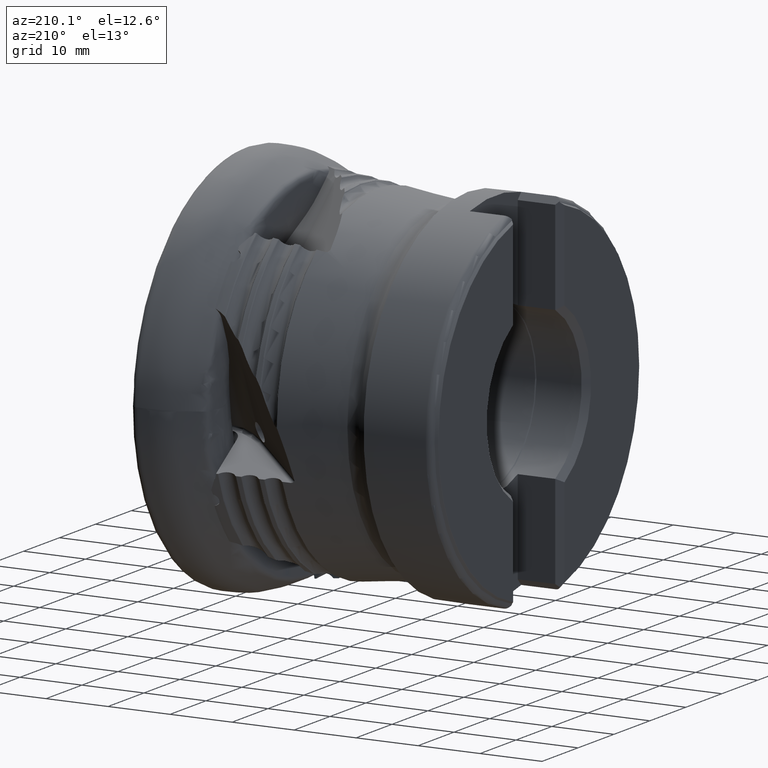
[diagram: clean part render]
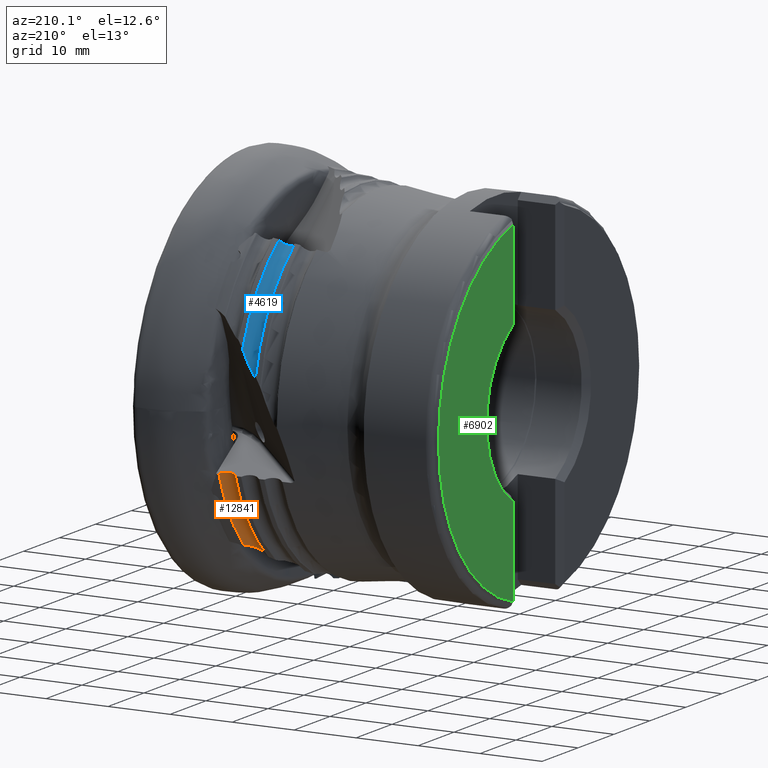
[diagram: same view with three faces highlighted in distinct colors, each labeled with its STEP entity id]
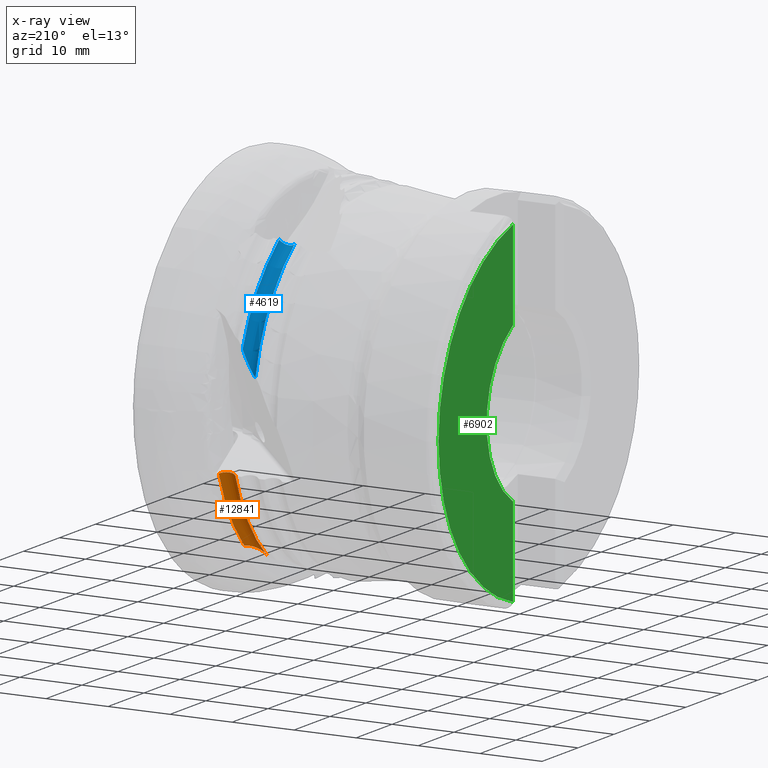
[diagram: x-ray of the same camera — body ghosted, the three highlighted faces saturated]
A machine part, auxiliary view with three faces highlighted in distinct colors.
The next image is the same camera in x-ray (body ghosted, the three faces saturated) — at least one of them is partly hidden behind the body in this view.
Their STEP definitions:

[orange] entity #12841 — the highlighted toroidal blend (fillet) surface has major radius 29.5836 mm and minor (blend) radius 1.5 mm.
#267 = DIRECTION ( 'NONE',  ( 1.000000000000000000, -0.0000000000000000000, -0.0000000000000000000 ) ) ;
#283 = CARTESIAN_POINT ( 'NONE',  ( -14.66368016556454600, 26.74815142583610200, -8.546479649731228500 ) ) ;
#577 = EDGE_LOOP ( 'NONE', ( #12160, #3145, #5440, #6804, #5904 ) ) ;
#698 = CARTESIAN_POINT ( 'NONE',  ( -15.64431457968922200, 18.25441115952500200, -21.89484082887267700 ) ) ;
#823 = CARTESIAN_POINT ( 'NONE',  ( -13.59798341822701100, 19.77894281667235500, -20.45328224450758700 ) ) ;
#1031 = EDGE_CURVE ( 'NONE', #3754, #9838, #13002, .T. ) ;
#1328 = CARTESIAN_POINT ( 'NONE',  ( -14.29861882600508400, 26.78175748694466000, -8.530557639437185800 ) ) ;
#1537 = DIRECTION ( 'NONE',  ( 1.000000000000000000, -0.0000000000000000000, -0.0000000000000000000 ) ) ;
#1862 = CARTESIAN_POINT ( 'NONE',  ( -13.93645120841135200, 19.28018875878806800, -20.61816210312195000 ) ) ;
#1990 = DIRECTION ( 'NONE',  ( -1.000000000000000000, 0.0000000000000000000, 0.0000000000000000000 ) ) ;
#2260 = CARTESIAN_POINT ( 'NONE',  ( -15.73091924072487700, 27.22649136495527200, -8.780370898644724400 ) ) ;
#2376 = DIRECTION ( 'NONE',  ( 0.0000000000000000000, 0.0000000000000000000, -1.000000000000000000 ) ) ;
#2395 = CARTESIAN_POINT ( 'NONE',  ( -13.95120504300901100, 26.89800882484249200, -8.542786251049474100 ) ) ;
#2709 = B_SPLINE_CURVE_WITH_KNOTS ( 'NONE', 3,
 ( #2260, #10858, #4426, #12046, #5507, #13114, #6592, #283, #7690, #1328, #8788, #2395, #9871, #3416, #10993, #4481 ),
 .UNSPECIFIED., .F., .F.,
 ( 4, 2, 2, 2, 2, 2, 2, 4 ),
 ( 3.032796259778654100E-007, 0.0003657010842361657500, 0.0007310988888463536300, 0.001096496693456541300, 0.001461894498066729400, 0.001827292302676917300, 0.002192690107287104700, 0.002923485716507481400 ),
 .UNSPECIFIED. ) ;
#2860 = CARTESIAN_POINT ( 'NONE',  ( -13.32671211212902100, 20.32676883207047400, -20.35382121929849200 ) ) ;
#2905 = CARTESIAN_POINT ( 'NONE',  ( -14.31613983948799900, 18.84691777508125200, -20.84728676107276300 ) ) ;
#3066 = AXIS2_PLACEMENT_3D ( 'NONE', #8772, #267, #2376 ) ;
#3145 = ORIENTED_EDGE ( 'NONE', *, *, #10970, .T. ) ;
#3296 = AXIS2_PLACEMENT_3D ( 'NONE', #7906, #1537, #9003 ) ;
#3399 = CARTESIAN_POINT ( 'NONE',  ( -13.25971844914862500, 27.55239962152452900, -8.704568880673177100 ) ) ;
#3416 = CARTESIAN_POINT ( 'NONE',  ( -13.53998262627695600, 27.15886044041274500, -8.597306785561542600 ) ) ;
#3754 = VERTEX_POINT ( 'NONE', #3399 ) ;
#3785 = CARTESIAN_POINT ( 'NONE',  ( -14.67487224676652100, 18.52419754906706500, -21.10786906102066500 ) ) ;
#3955 = CARTESIAN_POINT ( 'NONE',  ( -14.58857736291004800, 18.59805745769143200, -21.04286551054451200 ) ) ;
#4010 = FACE_OUTER_BOUND ( 'NONE', #577, .T. ) ;
#4056 = EDGE_CURVE ( 'NONE', #9838, #12118, #10907, .T. ) ;
#4426 = CARTESIAN_POINT ( 'NONE',  ( -15.56055790327976300, 27.06308975943152700, -8.714752612925950700 ) ) ;
#4481 = CARTESIAN_POINT ( 'NONE',  ( -13.25971844914862500, 27.55239962152452900, -8.704568880673177100 ) ) ;
#4848 = CARTESIAN_POINT ( 'NONE',  ( -14.94941276981207200, 18.34153211416847600, -21.31997167976398800 ) ) ;
#4943 = EDGE_CURVE ( 'NONE', #12118, #7723, #7149, .T. ) ;
#5440 = ORIENTED_EDGE ( 'NONE', *, *, #1031, .T. ) ;
#5507 = CARTESIAN_POINT ( 'NONE',  ( -15.25233690603162300, 26.87909898335922400, -8.632308313367781600 ) ) ;
#5564 = CIRCLE ( 'NONE', #3296, 28.60728482683651900 ) ;
#5904 = ORIENTED_EDGE ( 'NONE', *, *, #4943, .T. ) ;
#5931 = CARTESIAN_POINT ( 'NONE',  ( -15.24425908267375200, 18.22635377610626500, -21.55596613762418900 ) ) ;
#5956 = CARTESIAN_POINT ( 'NONE',  ( -14.58857736291004800, 18.59805745769143200, -21.04286551054451200 ) ) ;
#6001 = CARTESIAN_POINT ( 'NONE',  ( -15.73091924072486200, 18.31726440946174600, -21.97395207325292100 ) ) ;
#6401 = EDGE_CURVE ( 'NONE', #7723, #8871, #5564, .T. ) ;
#6592 = CARTESIAN_POINT ( 'NONE',  ( -14.90615834749977400, 26.77286863747204400, -8.572339064241591100 ) ) ;
#6804 = ORIENTED_EDGE ( 'NONE', *, *, #4056, .T. ) ;
#7029 = CARTESIAN_POINT ( 'NONE',  ( -15.54537783855138900, 18.22202470549650100, -21.80845700398719000 ) ) ;
#7149 = B_SPLINE_CURVE_WITH_KNOTS ( 'NONE', 3,
 ( #9183, #3785, #11372, #4848, #12472, #5931, #13548, #7029, #698, #8127 ),
 .UNSPECIFIED., .F., .F.,
 ( 4, 2, 2, 2, 4 ),
 ( 0.0001907705115792472200, 0.0005824372260205341000, 0.0009741039404618209800, 0.001365770654903108000, 0.001757437369344394600 ),
 .UNSPECIFIED. ) ;
#7690 = CARTESIAN_POINT ( 'NONE',  ( -14.54217313492521800, 26.74988325165344300, -8.538108500870922800 ) ) ;
#7723 = VERTEX_POINT ( 'NONE', #6001 ) ;
#7906 = CARTESIAN_POINT ( 'NONE',  ( -15.73091924072488400, 0.0000000000000000000, 0.0000000000000000000 ) ) ;
#8003 = CARTESIAN_POINT ( 'NONE',  ( -13.25971844914865000, 20.52456332381569100, -20.33830240382039600 ) ) ;
#8127 = CARTESIAN_POINT ( 'NONE',  ( -15.73091924072486200, 18.31726440946174600, -21.97395207325292100 ) ) ;
#8251 = CARTESIAN_POINT ( 'NONE',  ( -13.70516208307503300, 19.60600345781503900, -20.50091011351171500 ) ) ;
#8386 = CARTESIAN_POINT ( 'NONE',  ( -13.25971844914842600, 0.0000000000000000000, 0.0000000000000000000 ) ) ;
#8728 = TOROIDAL_SURFACE ( 'NONE', #3066, 29.58361959679392000, 1.500000000000002400 ) ;
#8772 = CARTESIAN_POINT ( 'NONE',  ( -14.59216096217220500, 0.0000000000000000000, 0.0000000000000000000 ) ) ;
#8788 = CARTESIAN_POINT ( 'NONE',  ( -14.17897787077064300, 26.81187978294629200, -8.531548317467915900 ) ) ;
#8871 = VERTEX_POINT ( 'NONE', #9373 ) ;
#9003 = DIRECTION ( 'NONE',  ( 0.0000000000000000000, 0.0000000000000000000, -1.000000000000000000 ) ) ;
#9183 = CARTESIAN_POINT ( 'NONE',  ( -14.58857736291004800, 18.59805745769143200, -21.04286551054451200 ) ) ;
#9343 = CARTESIAN_POINT ( 'NONE',  ( -14.05929468738462900, 19.12873399521459900, -20.68706232287737000 ) ) ;
#9373 = CARTESIAN_POINT ( 'NONE',  ( -15.73091924072487700, 27.22649136495527200, -8.780370898644724400 ) ) ;
#9479 = DIRECTION ( 'NONE',  ( 0.0000000000000000000, 0.0000000000000000000, 1.000000000000000000 ) ) ;
#9838 = VERTEX_POINT ( 'NONE', #8003 ) ;
#9871 = CARTESIAN_POINT ( 'NONE',  ( -13.84078516411995500, 26.95518636618206900, -8.553245694514894000 ) ) ;
#10435 = CARTESIAN_POINT ( 'NONE',  ( -14.45096424268653300, 18.71584071471656000, -20.93920535125270300 ) ) ;
#10858 = CARTESIAN_POINT ( 'NONE',  ( -15.65058963378116600, 27.13910762456153900, -8.746071933679914400 ) ) ;
#10907 = B_SPLINE_CURVE_WITH_KNOTS ( 'NONE', 3,
 ( #11447, #2860, #13674, #823, #8251, #1862, #9343, #2905, #10435, #3955 ),
 .UNSPECIFIED., .F., .F.,
 ( 4, 2, 2, 2, 4 ),
 ( 6.164340467705263700E-007, 0.0006199291021021860500, 0.001239241770157601400, 0.001858554438213016800, 0.002477867106268432300 ),
 .UNSPECIFIED. ) ;
#10970 = EDGE_CURVE ( 'NONE', #8871, #3754, #2709, .T. ) ;
#10993 = CARTESIAN_POINT ( 'NONE',  ( -13.37317353910212400, 27.34130555527529100, -8.644322091800191300 ) ) ;
#11372 = CARTESIAN_POINT ( 'NONE',  ( -14.76391762027453300, 18.45717426750530500, -21.17587540053323600 ) ) ;
#11447 = CARTESIAN_POINT ( 'NONE',  ( -13.25971844914865000, 20.52456332381569100, -20.33830240382039600 ) ) ;
#11632 = AXIS2_PLACEMENT_3D ( 'NONE', #8386, #1990, #9479 ) ;
#12046 = CARTESIAN_POINT ( 'NONE',  ( -15.36178085584722400, 26.93297668227241100, -8.657861149253674800 ) ) ;
#12118 = VERTEX_POINT ( 'NONE', #5956 ) ;
#12160 = ORIENTED_EDGE ( 'NONE', *, *, #6401, .T. ) ;
#12472 = CARTESIAN_POINT ( 'NONE',  ( -15.04650493972103600, 18.29268377587328900, -21.39657796579303900 ) ) ;
#12841 = ADVANCED_FACE ( 'NONE', ( #4010 ), #8728, .F. ) ;
#13002 = CIRCLE ( 'NONE', #11632, 28.89470962481823000 ) ;
#13114 = CARTESIAN_POINT ( 'NONE',  ( -15.02596670741099800, 26.79962039662904500, -8.589840195432559600 ) ) ;
#13548 = CARTESIAN_POINT ( 'NONE',  ( -15.34675650233438100, 18.20857372419403900, -21.64025951160877200 ) ) ;
#13674 = CARTESIAN_POINT ( 'NONE',  ( -13.40919753706904400, 20.13881497972345300, -20.37995926701862000 ) ) ;

[blue] entity #4619 — the highlighted toroidal blend (fillet) surface has major radius 29.1793 mm and minor (blend) radius 1.5 mm.
#199 = DIRECTION ( 'NONE',  ( 0.0000000000000000000, 0.0000000000000000000, -1.000000000000000000 ) ) ;
#201 = CARTESIAN_POINT ( 'NONE',  ( -17.77487234381225900, 16.34828886853912200, 22.36520211828384700 ) ) ;
#422 = ORIENTED_EDGE ( 'NONE', *, *, #10451, .T. ) ;
#442 = CIRCLE ( 'NONE', #1380, 28.49035131074739300 ) ;
#838 = CARTESIAN_POINT ( 'NONE',  ( -16.73628203318752800, 26.91251832291045100, 9.349677819576856000 ) ) ;
#884 = CARTESIAN_POINT ( 'NONE',  ( -18.83777621484479400, 27.27512742671571300, 5.817726045446863600 ) ) ;
#1187 = CARTESIAN_POINT ( 'NONE',  ( -19.20748282476013800, 0.0000000000000000000, 0.0000000000000000000 ) ) ;
#1263 = CARTESIAN_POINT ( 'NONE',  ( -17.42754815643262100, 16.39599631789283400, 22.47218576609484600 ) ) ;
#1341 = FACE_OUTER_BOUND ( 'NONE', #13824, .T. ) ;
#1380 = AXIS2_PLACEMENT_3D ( 'NONE', #4577, #12207, #5670 ) ;
#1931 = CARTESIAN_POINT ( 'NONE',  ( -19.06801515487307000, 27.45915504567869200, 5.758191708074990700 ) ) ;
#2198 = VERTEX_POINT ( 'NONE', #4414 ) ;
#2240 = DIRECTION ( 'NONE',  ( 0.0000000000000000000, 0.0000000000000000000, -1.000000000000000000 ) ) ;
#2270 = CARTESIAN_POINT ( 'NONE',  ( -19.20748282476038000, 16.72277955462657300, 22.71021153252045000 ) ) ;
#2308 = CARTESIAN_POINT ( 'NONE',  ( -17.01647133725787200, 16.52859563097484500, 22.70359747406820400 ) ) ;
#2917 = CARTESIAN_POINT ( 'NONE',  ( -16.96992041065848500, 26.79510340166409700, 8.599110053481418000 ) ) ;
#2961 = CARTESIAN_POINT ( 'NONE',  ( -19.20748282476043300, 27.60165929998117600, 5.792535521878797900 ) ) ;
#3306 = CARTESIAN_POINT ( 'NONE',  ( -18.06872454620770800, 0.0000000000000000000, 0.0000000000000000000 ) ) ;
#3308 = CARTESIAN_POINT ( 'NONE',  ( -19.03706399373120200, 16.60990339114075500, 22.57512497044495700 ) ) ;
#3354 = CARTESIAN_POINT ( 'NONE',  ( -16.73628203318413200, 16.75226101861765600, 23.04477963821555500 ) ) ;
#3489 = CARTESIAN_POINT ( 'NONE',  ( -16.73628203318413200, 16.75226101861765600, 23.04477963821555500 ) ) ;
#3522 = ORIENTED_EDGE ( 'NONE', *, *, #10520, .T. ) ;
#3580 = CARTESIAN_POINT ( 'NONE',  ( -19.20748282476043300, 27.60165929998117600, 5.792535521878797900 ) ) ;
#3972 = CARTESIAN_POINT ( 'NONE',  ( -17.45611975891431600, 26.76119937759158100, 7.514674314835135100 ) ) ;
#4315 = DIRECTION ( 'NONE',  ( 1.000000000000000000, -0.0000000000000000000, -0.0000000000000000000 ) ) ;
#4359 = CARTESIAN_POINT ( 'NONE',  ( -18.72873053462962300, 16.47472063442490500, 22.42574325088558900 ) ) ;
#4414 = CARTESIAN_POINT ( 'NONE',  ( -16.73628203318752800, 26.91251832291045100, 9.349677819576856000 ) ) ;
#4530 = AXIS2_PLACEMENT_3D ( 'NONE', #1187, #8641, #2240 ) ;
#4577 = CARTESIAN_POINT ( 'NONE',  ( -16.73628203318394700, 0.0000000000000000000, 0.0000000000000000000 ) ) ;
#4619 = ADVANCED_FACE ( 'NONE', ( #1341 ), #12447, .F. ) ;
#5043 = CARTESIAN_POINT ( 'NONE',  ( -17.86445195771179000, 26.83327668133958400, 6.832072677901973800 ) ) ;
#5422 = CARTESIAN_POINT ( 'NONE',  ( -18.38244554364728200, 16.38499237104885600, 22.34343923880802100 ) ) ;
#5670 = DIRECTION ( 'NONE',  ( 0.0000000000000000000, 0.0000000000000000000, 1.000000000000000000 ) ) ;
#5744 = B_SPLINE_CURVE_WITH_KNOTS ( 'NONE', 3,
 ( #2270, #8668, #3308, #10867, #4359, #11975, #5422, #13043, #6524, #201, #7614, #1263, #8715, #2308, #9804, #3354 ),
 .UNSPECIFIED., .F., .F.,
 ( 4, 2, 2, 2, 2, 2, 2, 4 ),
 ( 3.031922946971121000E-007, 0.0003657123309134226700, 0.0007311214695321482400, 0.001096530608150873900, 0.001461939746769599500, 0.001827348885388325100, 0.002192758024007050600, 0.002923576301244512200 ),
 .UNSPECIFIED. ) ;
#6008 = B_SPLINE_CURVE_WITH_KNOTS ( 'NONE', 3,
 ( #838, #6071, #2917, #10454, #3972, #11560, #5043, #12656, #6114, #13739, #7222, #884, #8312, #1931, #9410, #2961 ),
 .UNSPECIFIED., .F., .F.,
 ( 4, 2, 2, 2, 2, 2, 2, 4 ),
 ( 7.800189704854811000E-007, 0.001185173469790919600, 0.002369566920611353700, 0.002961763646021570900, 0.003553960371431788200, 0.004146157096842005000, 0.004442255459547120000, 0.004738353822252234900 ),
 .UNSPECIFIED. ) ;
#6055 = VERTEX_POINT ( 'NONE', #6350 ) ;
#6071 = CARTESIAN_POINT ( 'NONE',  ( -16.83753142971311000, 26.83735116372996600, 8.969309841691869100 ) ) ;
#6114 = CARTESIAN_POINT ( 'NONE',  ( -18.21071572689565000, 26.94052053772089600, 6.357884448387783200 ) ) ;
#6350 = CARTESIAN_POINT ( 'NONE',  ( -19.20748282476038000, 16.72277955462657300, 22.71021153252045000 ) ) ;
#6524 = CARTESIAN_POINT ( 'NONE',  ( -18.01843705367538100, 16.34550377099342500, 22.33239269539868500 ) ) ;
#7222 = CARTESIAN_POINT ( 'NONE',  ( -18.61260587758133800, 27.12688691031657100, 5.947960019773759700 ) ) ;
#7614 = CARTESIAN_POINT ( 'NONE',  ( -17.65527715338524600, 16.35859371879918500, 22.39361336084239400 ) ) ;
#8312 = CARTESIAN_POINT ( 'NONE',  ( -18.91504970278404600, 27.33144008699622800, 5.785375788691347100 ) ) ;
#8641 = DIRECTION ( 'NONE',  ( 1.000000000000000000, -0.0000000000000000000, -0.0000000000000000000 ) ) ;
#8668 = CARTESIAN_POINT ( 'NONE',  ( -19.12712758737441700, 16.66316458887490600, 22.63771816071054500 ) ) ;
#8715 = CARTESIAN_POINT ( 'NONE',  ( -17.31716179512817500, 16.42365647834670700, 22.52338900075411800 ) ) ;
#9111 = AXIS2_PLACEMENT_3D ( 'NONE', #3306, #4315, #199 ) ;
#9410 = CARTESIAN_POINT ( 'NONE',  ( -19.14199430956677300, 27.52949598885701800, 5.764498908806648300 ) ) ;
#9559 = ORIENTED_EDGE ( 'NONE', *, *, #11549, .T. ) ;
#9684 = VERTEX_POINT ( 'NONE', #3489 ) ;
#9762 = CIRCLE ( 'NONE', #4530, 28.20292651276589500 ) ;
#9767 = VERTEX_POINT ( 'NONE', #3580 ) ;
#9804 = CARTESIAN_POINT ( 'NONE',  ( -16.84971482668358800, 16.62972038212246400, 22.86262220805240400 ) ) ;
#10451 = EDGE_CURVE ( 'NONE', #6055, #9684, #5744, .T. ) ;
#10454 = CARTESIAN_POINT ( 'NONE',  ( -17.27841536135097300, 26.75682355259146700, 7.872985639764799300 ) ) ;
#10520 = EDGE_CURVE ( 'NONE', #9684, #2198, #442, .T. ) ;
#10635 = ORIENTED_EDGE ( 'NONE', *, *, #11736, .T. ) ;
#10867 = CARTESIAN_POINT ( 'NONE',  ( -18.83821073849190600, 16.51563652982266800, 22.46903466214607500 ) ) ;
#11549 = EDGE_CURVE ( 'NONE', #2198, #9767, #6008, .T. ) ;
#11560 = CARTESIAN_POINT ( 'NONE',  ( -17.75773806148776000, 26.80985877614919500, 7.000069497626327600 ) ) ;
#11736 = EDGE_CURVE ( 'NONE', #9767, #6055, #9762, .T. ) ;
#11975 = CARTESIAN_POINT ( 'NONE',  ( -18.50229448724736200, 16.40985486204776200, 22.36340150079757200 ) ) ;
#12207 = DIRECTION ( 'NONE',  ( -1.000000000000000000, 0.0000000000000000000, 0.0000000000000000000 ) ) ;
#12447 = TOROIDAL_SURFACE ( 'NONE', #9111, 29.17926128272307900, 1.500000000000000900 ) ;
#12656 = CARTESIAN_POINT ( 'NONE',  ( -18.09124800821032500, 26.89884983030606200, 6.510893253740279700 ) ) ;
#13043 = CARTESIAN_POINT ( 'NONE',  ( -18.13995082017616400, 16.35287296522663400, 22.32807944167337400 ) ) ;
#13739 = CARTESIAN_POINT ( 'NONE',  ( -18.47033551975568600, 27.05413738008373400, 6.077701119323673000 ) ) ;
#13824 = EDGE_LOOP ( 'NONE', ( #3522, #9559, #10635, #422 ) ) ;

[green] entity #6902 — the highlighted planar face has unit normal (-1, 0, 0).
#21 = LINE ( 'NONE', #6696, #2480 ) ;
#122 = PLANE ( 'NONE',  #5597 ) ;
#139 = CARTESIAN_POINT ( 'NONE',  ( -48.90525917703946100, 7.149999999999995900, -35.00000000000000000 ) ) ;
#744 = CARTESIAN_POINT ( 'NONE',  ( -48.90525917703946100, 0.0000000000000000000, 0.0000000000000000000 ) ) ;
#1059 = CIRCLE ( 'NONE', #5417, 14.52500000000000400 ) ;
#1378 = CARTESIAN_POINT ( 'NONE',  ( -48.90525917703946100, 7.149999999999995900, 12.64330356354699500 ) ) ;
#1562 = ORIENTED_EDGE ( 'NONE', *, *, #1618, .T. ) ;
#1618 = EDGE_CURVE ( 'NONE', #10722, #3913, #11470, .T. ) ;
#1782 = DIRECTION ( 'NONE',  ( 0.0000000000000000000, 0.0000000000000000000, 1.000000000000000000 ) ) ;
#2227 = DIRECTION ( 'NONE',  ( 0.0000000000000000000, 0.0000000000000000000, 1.000000000000000000 ) ) ;
#2468 = DIRECTION ( 'NONE',  ( 0.0000000000000000000, -0.0000000000000000000, 1.000000000000000000 ) ) ;
#2480 = VECTOR ( 'NONE', #2468, 1000.000000000000000 ) ;
#2548 = EDGE_CURVE ( 'NONE', #3913, #2642, #1059, .T. ) ;
#2642 = VERTEX_POINT ( 'NONE', #1378 ) ;
#3392 = EDGE_CURVE ( 'Kante161', #10722, #3793, #13466, .T. ) ;
#3793 = VERTEX_POINT ( 'NONE', #5617 ) ;
#3913 = VERTEX_POINT ( 'NONE', #4773 ) ;
#4773 = CARTESIAN_POINT ( 'NONE',  ( -48.90525917703946100, 7.149999999999995000, -12.64330356354699500 ) ) ;
#5375 = DIRECTION ( 'NONE',  ( 1.000000000000000000, -0.0000000000000000000, -0.0000000000000000000 ) ) ;
#5417 = AXIS2_PLACEMENT_3D ( 'NONE', #11910, #5375, #12990 ) ;
#5597 = AXIS2_PLACEMENT_3D ( 'NONE', #7518, #8629, #2227 ) ;
#5617 = CARTESIAN_POINT ( 'NONE',  ( -48.90525917703946100, 7.149999999999995900, 26.99132532673017300 ) ) ;
#5620 = EDGE_CURVE ( 'NONE', #2642, #3793, #21, .T. ) ;
#6696 = CARTESIAN_POINT ( 'NONE',  ( -48.90525917703946100, 7.149999999999995900, -35.00000000000000000 ) ) ;
#6871 = ORIENTED_EDGE ( 'NONE', *, *, #5620, .T. ) ;
#6902 = ADVANCED_FACE ( 'NONE', ( #12730 ), #122, .T. ) ;
#7518 = CARTESIAN_POINT ( 'NONE',  ( -48.90525917703946100, 0.0000000000000000000, 0.0000000000000000000 ) ) ;
#7551 = DIRECTION ( 'NONE',  ( 0.0000000000000000000, -0.0000000000000000000, 1.000000000000000000 ) ) ;
#7652 = ORIENTED_EDGE ( 'NONE', *, *, #3392, .F. ) ;
#8166 = DIRECTION ( 'NONE',  ( 1.000000000000000000, -0.0000000000000000000, -0.0000000000000000000 ) ) ;
#8564 = VECTOR ( 'NONE', #7551, 1000.000000000000000 ) ;
#8629 = DIRECTION ( 'NONE',  ( -1.000000000000000000, 0.0000000000000000000, 0.0000000000000000000 ) ) ;
#10722 = VERTEX_POINT ( 'NONE', #12580 ) ;
#11196 = ORIENTED_EDGE ( 'NONE', *, *, #2548, .T. ) ;
#11470 = LINE ( 'NONE', #139, #8564 ) ;
#11910 = CARTESIAN_POINT ( 'NONE',  ( -48.90525917703946100, 5.222661873543247300E-018, 1.380080236933418700E-017 ) ) ;
#12201 = AXIS2_PLACEMENT_3D ( 'NONE', #744, #8166, #1782 ) ;
#12580 = CARTESIAN_POINT ( 'NONE',  ( -48.90525917703946100, 7.149999999999995000, -26.99132532673133900 ) ) ;
#12730 = FACE_OUTER_BOUND ( 'NONE', #13013, .T. ) ;
#12990 = DIRECTION ( 'NONE',  ( 0.0000000000000000000, -8.881784197001252300E-016, 1.000000000000000000 ) ) ;
#13013 = EDGE_LOOP ( 'NONE', ( #1562, #11196, #6871, #7652 ) ) ;
#13466 = CIRCLE ( 'NONE', #12201, 27.92228756555323000 ) ;